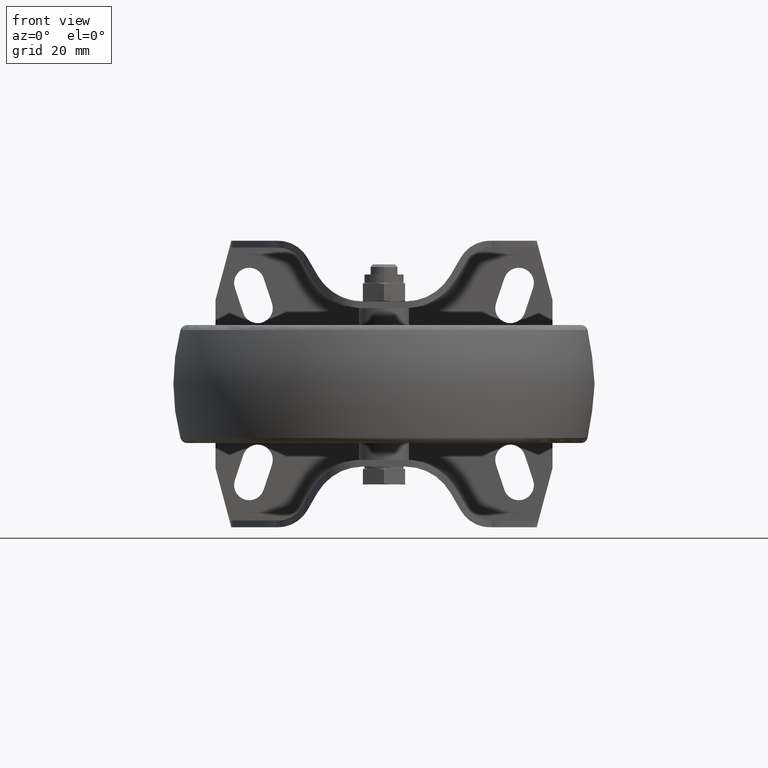
[diagram: clean part render]
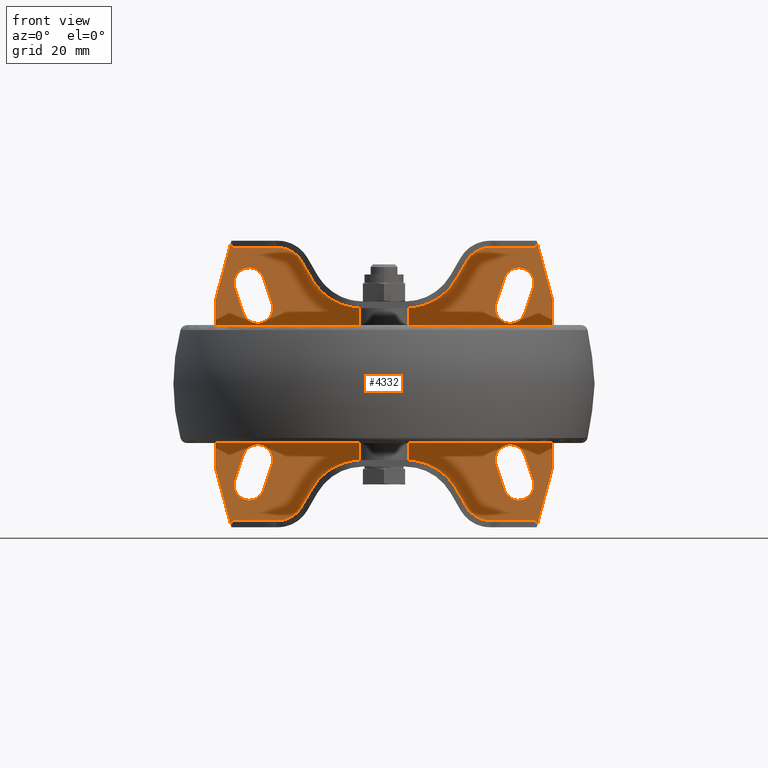
[diagram: same view with one face highlighted and labeled with its STEP entity id]
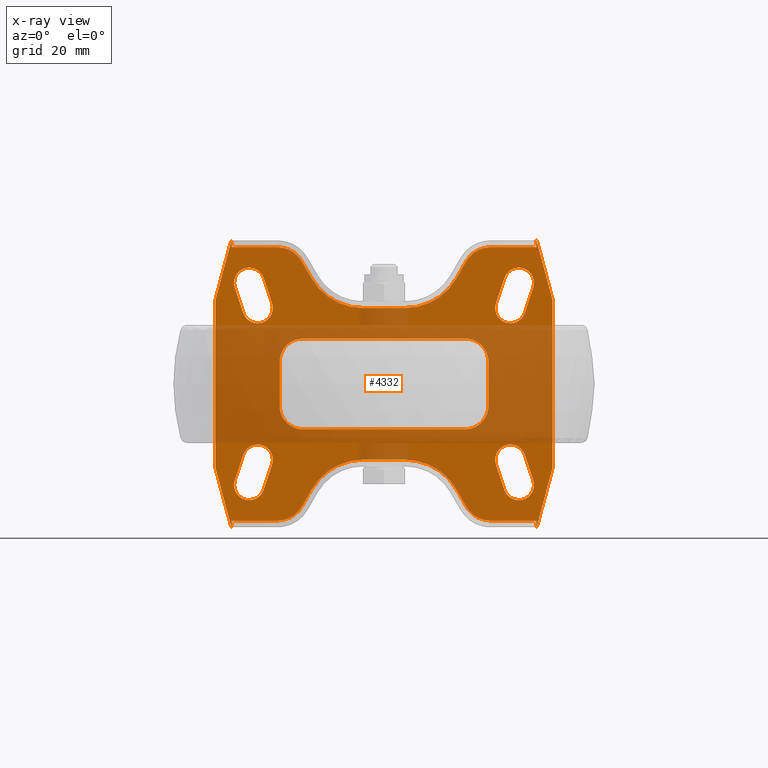
[diagram: x-ray of the same camera — body ghosted, the highlighted face saturated]
A machine part, front view. The second image highlights one B-rep face of the part: STEP entity #4332.
The next image is the same camera in x-ray: the body ghosted, the highlighted face saturated — about 47% of this face is hidden behind the body in this view.
In plain terms, the highlighted planar face has unit normal (0, 1, 0).
Its self-contained STEP definition (entity closure, byte-faithful):
#137=FACE_BOUND('',#681,.T.);
#138=FACE_BOUND('',#682,.T.);
#139=FACE_BOUND('',#683,.T.);
#140=FACE_BOUND('',#684,.T.);
#141=FACE_BOUND('',#685,.T.);
#189=PLANE('',#4717);
#427=FACE_OUTER_BOUND('',#680,.T.);
#680=EDGE_LOOP('',(#3088,#3089,#3090,#3091,#3092,#3093,#3094,#3095,#3096,
#3097,#3098,#3099,#3100,#3101,#3102,#3103,#3104,#3105,#3106,#3107,#3108,
#3109,#3110,#3111,#3112,#3113,#3114,#3115));
#681=EDGE_LOOP('',(#3116,#3117,#3118,#3119));
#682=EDGE_LOOP('',(#3120,#3121,#3122,#3123,#3124,#3125,#3126,#3127));
#683=EDGE_LOOP('',(#3128,#3129,#3130,#3131));
#684=EDGE_LOOP('',(#3132,#3133,#3134,#3135));
#685=EDGE_LOOP('',(#3136,#3137,#3138,#3139));
#860=LINE('',#6736,#1134);
#861=LINE('',#6739,#1135);
#875=LINE('',#6791,#1149);
#876=LINE('',#6794,#1150);
#879=LINE('',#6801,#1153);
#884=LINE('',#6815,#1158);
#887=LINE('',#6825,#1161);
#892=LINE('',#6839,#1166);
#895=LINE('',#6849,#1169);
#900=LINE('',#6863,#1174);
#903=LINE('',#6873,#1177);
#908=LINE('',#6887,#1182);
#912=LINE('',#6898,#1186);
#916=LINE('',#6907,#1190);
#919=LINE('',#6915,#1193);
#922=LINE('',#6924,#1196);
#923=LINE('',#6928,#1197);
#924=LINE('',#6932,#1198);
#925=LINE('',#6936,#1199);
#926=LINE('',#6940,#1200);
#927=LINE('',#6941,#1201);
#928=LINE('',#6943,#1202);
#929=LINE('',#6945,#1203);
#930=LINE('',#6947,#1204);
#931=LINE('',#6951,#1205);
#932=LINE('',#6955,#1206);
#933=LINE('',#6959,#1207);
#934=LINE('',#6962,#1208);
#935=LINE('',#6967,#1209);
#936=LINE('',#6971,#1210);
#937=LINE('',#6975,#1211);
#938=LINE('',#6978,#1212);
#1134=VECTOR('',#5368,18.1173331571764);
#1135=VECTOR('',#5371,50.);
#1149=VECTOR('',#5407,18.1173331571764);
#1150=VECTOR('',#5410,50.);
#1153=VECTOR('',#5415,7.90569415042095);
#1158=VECTOR('',#5428,7.90569415042095);
#1161=VECTOR('',#5439,7.90569415042095);
#1166=VECTOR('',#5452,7.90569415042095);
#1169=VECTOR('',#5463,7.90569415042095);
#1174=VECTOR('',#5476,7.90569415042095);
#1177=VECTOR('',#5487,7.90569415042095);
#1182=VECTOR('',#5500,7.90569415042095);
#1186=VECTOR('',#5512,2.);
#1190=VECTOR('',#5518,2.);
#1193=VECTOR('',#5525,13.8950815951459);
#1196=VECTOR('',#5534,18.1173331571764);
#1197=VECTOR('',#5537,6.06217782649105);
#1198=VECTOR('',#5540,12.6021416551216);
#1199=VECTOR('',#5543,6.06217782649105);
#1200=VECTOR('',#5546,13.8950815951459);
#1201=VECTOR('',#5547,2.);
#1202=VECTOR('',#5548,18.1173331571764);
#1203=VECTOR('',#5549,2.);
#1204=VECTOR('',#5550,13.8950815951459);
#1205=VECTOR('',#5553,6.06217782649105);
#1206=VECTOR('',#5556,12.6021416551216);
#1207=VECTOR('',#5559,6.06217782649105);
#1208=VECTOR('',#5562,13.8950815951459);
#1209=VECTOR('',#5565,14.5742345971973);
#1210=VECTOR('',#5568,49.5742345971972);
#1211=VECTOR('',#5571,14.5742345971972);
#1212=VECTOR('',#5574,49.5742345971972);
#1476=CIRCLE('',#4681,4.5);
#1478=CIRCLE('',#4685,4.5);
#1480=CIRCLE('',#4689,4.5);
#1482=CIRCLE('',#4693,4.49999999999999);
#1484=CIRCLE('',#4697,4.5);
#1486=CIRCLE('',#4701,4.5);
#1488=CIRCLE('',#4705,4.49999999999999);
#1490=CIRCLE('',#4709,4.49999999999999);
#1495=CIRCLE('',#4718,7.99999999999994);
#1496=CIRCLE('',#4719,17.5);
#1497=CIRCLE('',#4720,17.5);
#1498=CIRCLE('',#4721,7.99999999999996);
#1499=CIRCLE('',#4722,8.00000000000002);
#1500=CIRCLE('',#4723,17.5);
#1501=CIRCLE('',#4724,17.5);
#1502=CIRCLE('',#4725,8.00000000000002);
#1503=CIRCLE('',#4726,7.00000000000001);
#1504=CIRCLE('',#4727,7.);
#1505=CIRCLE('',#4728,7.00000000000001);
#1506=CIRCLE('',#4729,7.);
#1712=VERTEX_POINT('',#6730);
#1714=VERTEX_POINT('',#6734);
#1715=VERTEX_POINT('',#6738);
#1726=VERTEX_POINT('',#6771);
#1734=VERTEX_POINT('',#6789);
#1735=VERTEX_POINT('',#6793);
#1737=VERTEX_POINT('',#6799);
#1738=VERTEX_POINT('',#6800);
#1741=VERTEX_POINT('',#6808);
#1743=VERTEX_POINT('',#6814);
#1745=VERTEX_POINT('',#6823);
#1746=VERTEX_POINT('',#6824);
#1749=VERTEX_POINT('',#6832);
#1751=VERTEX_POINT('',#6838);
#1753=VERTEX_POINT('',#6847);
#1754=VERTEX_POINT('',#6848);
#1757=VERTEX_POINT('',#6856);
#1759=VERTEX_POINT('',#6862);
#1761=VERTEX_POINT('',#6871);
#1762=VERTEX_POINT('',#6872);
#1765=VERTEX_POINT('',#6880);
#1767=VERTEX_POINT('',#6886);
#1770=VERTEX_POINT('',#6897);
#1773=VERTEX_POINT('',#6904);
#1774=VERTEX_POINT('',#6906);
#1777=VERTEX_POINT('',#6913);
#1781=VERTEX_POINT('',#6925);
#1782=VERTEX_POINT('',#6927);
#1783=VERTEX_POINT('',#6929);
#1784=VERTEX_POINT('',#6931);
#1785=VERTEX_POINT('',#6933);
#1786=VERTEX_POINT('',#6935);
#1787=VERTEX_POINT('',#6937);
#1788=VERTEX_POINT('',#6939);
#1789=VERTEX_POINT('',#6942);
#1790=VERTEX_POINT('',#6944);
#1791=VERTEX_POINT('',#6946);
#1792=VERTEX_POINT('',#6948);
#1793=VERTEX_POINT('',#6950);
#1794=VERTEX_POINT('',#6952);
#1795=VERTEX_POINT('',#6954);
#1796=VERTEX_POINT('',#6956);
#1797=VERTEX_POINT('',#6958);
#1798=VERTEX_POINT('',#6960);
#1799=VERTEX_POINT('',#6963);
#1800=VERTEX_POINT('',#6964);
#1801=VERTEX_POINT('',#6966);
#1802=VERTEX_POINT('',#6968);
#1803=VERTEX_POINT('',#6970);
#1804=VERTEX_POINT('',#6972);
#1805=VERTEX_POINT('',#6974);
#1806=VERTEX_POINT('',#6976);
#2178=EDGE_CURVE('',#1714,#1712,#860,.T.);
#2179=EDGE_CURVE('',#1715,#1714,#861,.T.);
#2202=EDGE_CURVE('',#1734,#1726,#875,.T.);
#2203=EDGE_CURVE('',#1735,#1734,#876,.T.);
#2206=EDGE_CURVE('',#1737,#1738,#879,.T.);
#2210=EDGE_CURVE('',#1741,#1737,#1476,.T.);
#2213=EDGE_CURVE('',#1743,#1741,#884,.T.);
#2216=EDGE_CURVE('',#1738,#1743,#1478,.T.);
#2218=EDGE_CURVE('',#1745,#1746,#887,.T.);
#2222=EDGE_CURVE('',#1749,#1745,#1480,.T.);
#2225=EDGE_CURVE('',#1751,#1749,#892,.T.);
#2228=EDGE_CURVE('',#1746,#1751,#1482,.T.);
#2230=EDGE_CURVE('',#1753,#1754,#895,.T.);
#2234=EDGE_CURVE('',#1757,#1753,#1484,.T.);
#2237=EDGE_CURVE('',#1759,#1757,#900,.T.);
#2240=EDGE_CURVE('',#1754,#1759,#1486,.T.);
#2242=EDGE_CURVE('',#1761,#1762,#903,.T.);
#2246=EDGE_CURVE('',#1765,#1761,#1488,.T.);
#2249=EDGE_CURVE('',#1767,#1765,#908,.T.);
#2252=EDGE_CURVE('',#1762,#1767,#1490,.T.);
#2255=EDGE_CURVE('',#1770,#1726,#912,.T.);
#2259=EDGE_CURVE('',#1774,#1773,#916,.T.);
#2263=EDGE_CURVE('',#1773,#1777,#919,.T.);
#2268=EDGE_CURVE('',#1774,#1735,#922,.T.);
#2269=EDGE_CURVE('',#1777,#1781,#1495,.T.);
#2270=EDGE_CURVE('',#1781,#1782,#923,.T.);
#2271=EDGE_CURVE('',#1782,#1783,#1496,.T.);
#2272=EDGE_CURVE('',#1783,#1784,#924,.T.);
#2273=EDGE_CURVE('',#1784,#1785,#1497,.T.);
#2274=EDGE_CURVE('',#1785,#1786,#925,.T.);
#2275=EDGE_CURVE('',#1786,#1787,#1498,.T.);
#2276=EDGE_CURVE('',#1787,#1788,#926,.T.);
#2277=EDGE_CURVE('',#1788,#1712,#927,.T.);
#2278=EDGE_CURVE('',#1789,#1715,#928,.T.);
#2279=EDGE_CURVE('',#1789,#1790,#929,.T.);
#2280=EDGE_CURVE('',#1790,#1791,#930,.T.);
#2281=EDGE_CURVE('',#1791,#1792,#1499,.T.);
#2282=EDGE_CURVE('',#1792,#1793,#931,.T.);
#2283=EDGE_CURVE('',#1793,#1794,#1500,.T.);
#2284=EDGE_CURVE('',#1794,#1795,#932,.T.);
#2285=EDGE_CURVE('',#1795,#1796,#1501,.T.);
#2286=EDGE_CURVE('',#1796,#1797,#933,.T.);
#2287=EDGE_CURVE('',#1797,#1798,#1502,.T.);
#2288=EDGE_CURVE('',#1798,#1770,#934,.T.);
#2289=EDGE_CURVE('',#1799,#1800,#1503,.T.);
#2290=EDGE_CURVE('',#1800,#1801,#935,.T.);
#2291=EDGE_CURVE('',#1801,#1802,#1504,.T.);
#2292=EDGE_CURVE('',#1802,#1803,#936,.T.);
#2293=EDGE_CURVE('',#1803,#1804,#1505,.T.);
#2294=EDGE_CURVE('',#1805,#1804,#937,.T.);
#2295=EDGE_CURVE('',#1805,#1806,#1506,.T.);
#2296=EDGE_CURVE('',#1799,#1806,#938,.T.);
#3088=ORIENTED_EDGE('',*,*,#2203,.F.);
#3089=ORIENTED_EDGE('',*,*,#2268,.F.);
#3090=ORIENTED_EDGE('',*,*,#2259,.T.);
#3091=ORIENTED_EDGE('',*,*,#2263,.T.);
#3092=ORIENTED_EDGE('',*,*,#2269,.T.);
#3093=ORIENTED_EDGE('',*,*,#2270,.T.);
#3094=ORIENTED_EDGE('',*,*,#2271,.T.);
#3095=ORIENTED_EDGE('',*,*,#2272,.T.);
#3096=ORIENTED_EDGE('',*,*,#2273,.T.);
#3097=ORIENTED_EDGE('',*,*,#2274,.T.);
#3098=ORIENTED_EDGE('',*,*,#2275,.T.);
#3099=ORIENTED_EDGE('',*,*,#2276,.T.);
#3100=ORIENTED_EDGE('',*,*,#2277,.T.);
#3101=ORIENTED_EDGE('',*,*,#2178,.F.);
#3102=ORIENTED_EDGE('',*,*,#2179,.F.);
#3103=ORIENTED_EDGE('',*,*,#2278,.F.);
#3104=ORIENTED_EDGE('',*,*,#2279,.T.);
#3105=ORIENTED_EDGE('',*,*,#2280,.T.);
#3106=ORIENTED_EDGE('',*,*,#2281,.T.);
#3107=ORIENTED_EDGE('',*,*,#2282,.T.);
#3108=ORIENTED_EDGE('',*,*,#2283,.T.);
#3109=ORIENTED_EDGE('',*,*,#2284,.T.);
#3110=ORIENTED_EDGE('',*,*,#2285,.T.);
#3111=ORIENTED_EDGE('',*,*,#2286,.T.);
#3112=ORIENTED_EDGE('',*,*,#2287,.T.);
#3113=ORIENTED_EDGE('',*,*,#2288,.T.);
#3114=ORIENTED_EDGE('',*,*,#2255,.T.);
#3115=ORIENTED_EDGE('',*,*,#2202,.F.);
#3116=ORIENTED_EDGE('',*,*,#2252,.F.);
#3117=ORIENTED_EDGE('',*,*,#2242,.F.);
#3118=ORIENTED_EDGE('',*,*,#2246,.F.);
#3119=ORIENTED_EDGE('',*,*,#2249,.F.);
#3120=ORIENTED_EDGE('',*,*,#2289,.T.);
#3121=ORIENTED_EDGE('',*,*,#2290,.T.);
#3122=ORIENTED_EDGE('',*,*,#2291,.T.);
#3123=ORIENTED_EDGE('',*,*,#2292,.T.);
#3124=ORIENTED_EDGE('',*,*,#2293,.T.);
#3125=ORIENTED_EDGE('',*,*,#2294,.F.);
#3126=ORIENTED_EDGE('',*,*,#2295,.T.);
#3127=ORIENTED_EDGE('',*,*,#2296,.F.);
#3128=ORIENTED_EDGE('',*,*,#2228,.F.);
#3129=ORIENTED_EDGE('',*,*,#2218,.F.);
#3130=ORIENTED_EDGE('',*,*,#2222,.F.);
#3131=ORIENTED_EDGE('',*,*,#2225,.F.);
#3132=ORIENTED_EDGE('',*,*,#2216,.F.);
#3133=ORIENTED_EDGE('',*,*,#2206,.F.);
#3134=ORIENTED_EDGE('',*,*,#2210,.F.);
#3135=ORIENTED_EDGE('',*,*,#2213,.F.);
#3136=ORIENTED_EDGE('',*,*,#2240,.F.);
#3137=ORIENTED_EDGE('',*,*,#2230,.F.);
#3138=ORIENTED_EDGE('',*,*,#2234,.F.);
#3139=ORIENTED_EDGE('',*,*,#2237,.F.);
#4332=ADVANCED_FACE('',(#427,#137,#138,#139,#140,#141),#189,.F.);
#4681=AXIS2_PLACEMENT_3D('',#6809,#5421,#5422);
#4685=AXIS2_PLACEMENT_3D('',#6820,#5433,#5434);
#4689=AXIS2_PLACEMENT_3D('',#6833,#5445,#5446);
#4693=AXIS2_PLACEMENT_3D('',#6844,#5457,#5458);
#4697=AXIS2_PLACEMENT_3D('',#6857,#5469,#5470);
#4701=AXIS2_PLACEMENT_3D('',#6868,#5481,#5482);
#4705=AXIS2_PLACEMENT_3D('',#6881,#5493,#5494);
#4709=AXIS2_PLACEMENT_3D('',#6892,#5505,#5506);
#4717=AXIS2_PLACEMENT_3D('',#6923,#5532,#5533);
#4718=AXIS2_PLACEMENT_3D('',#6926,#5535,#5536);
#4719=AXIS2_PLACEMENT_3D('',#6930,#5538,#5539);
#4720=AXIS2_PLACEMENT_3D('',#6934,#5541,#5542);
#4721=AXIS2_PLACEMENT_3D('',#6938,#5544,#5545);
#4722=AXIS2_PLACEMENT_3D('',#6949,#5551,#5552);
#4723=AXIS2_PLACEMENT_3D('',#6953,#5554,#5555);
#4724=AXIS2_PLACEMENT_3D('',#6957,#5557,#5558);
#4725=AXIS2_PLACEMENT_3D('',#6961,#5560,#5561);
#4726=AXIS2_PLACEMENT_3D('',#6965,#5563,#5564);
#4727=AXIS2_PLACEMENT_3D('',#6969,#5566,#5567);
#4728=AXIS2_PLACEMENT_3D('',#6973,#5569,#5570);
#4729=AXIS2_PLACEMENT_3D('',#6977,#5572,#5573);
#5368=DIRECTION('',(0.258819045102519,0.,0.965925826289069));
#5371=DIRECTION('',(0.,0.,1.));
#5407=DIRECTION('',(-0.258819045102519,0.,-0.965925826289069));
#5410=DIRECTION('',(0.,0.,-1.));
#5415=DIRECTION('',(0.316227766016837,0.,0.948683298050514));
#5421=DIRECTION('center_axis',(0.,-1.,0.));
#5422=DIRECTION('ref_axis',(0.948683298050514,0.,-0.316227766016838));
#5428=DIRECTION('',(-0.316227766016837,0.,-0.948683298050514));
#5433=DIRECTION('center_axis',(0.,-1.,0.));
#5434=DIRECTION('ref_axis',(-0.948683298050514,0.,0.316227766016838));
#5439=DIRECTION('',(0.316227766016837,0.,-0.948683298050514));
#5445=DIRECTION('center_axis',(0.,-1.,0.));
#5446=DIRECTION('ref_axis',(-0.948683298050514,0.,-0.316227766016838));
#5452=DIRECTION('',(-0.316227766016837,0.,0.948683298050514));
#5457=DIRECTION('center_axis',(0.,-1.,0.));
#5458=DIRECTION('ref_axis',(0.948683298050514,0.,0.316227766016838));
#5463=DIRECTION('',(0.316227766016837,0.,-0.948683298050514));
#5469=DIRECTION('center_axis',(0.,-1.,0.));
#5470=DIRECTION('ref_axis',(-0.948683298050514,0.,-0.316227766016838));
#5476=DIRECTION('',(-0.316227766016837,0.,0.948683298050514));
#5481=DIRECTION('center_axis',(0.,-1.,0.));
#5482=DIRECTION('ref_axis',(0.948683298050514,0.,0.316227766016838));
#5487=DIRECTION('',(0.316227766016837,0.,0.948683298050514));
#5493=DIRECTION('center_axis',(0.,-1.,0.));
#5494=DIRECTION('ref_axis',(0.948683298050514,0.,-0.316227766016837));
#5500=DIRECTION('',(-0.316227766016837,0.,-0.948683298050514));
#5505=DIRECTION('center_axis',(0.,-1.,0.));
#5506=DIRECTION('ref_axis',(-0.948683298050514,0.,0.316227766016838));
#5512=DIRECTION('',(0.,0.,-1.));
#5518=DIRECTION('',(0.,0.,-1.));
#5525=DIRECTION('',(-1.,0.,0.));
#5532=DIRECTION('center_axis',(0.,1.,0.));
#5533=DIRECTION('ref_axis',(0.,0.,1.));
#5534=DIRECTION('',(0.258819045102521,0.,-0.965925826289068));
#5535=DIRECTION('center_axis',(0.,-1.,0.));
#5536=DIRECTION('ref_axis',(0.,0.,1.));
#5537=DIRECTION('',(-0.500000000000005,0.,-0.866025403784436));
#5538=DIRECTION('center_axis',(0.,1.,0.));
#5539=DIRECTION('ref_axis',(0.866025403784439,0.,-0.5));
#5540=DIRECTION('',(-1.,0.,0.));
#5541=DIRECTION('center_axis',(0.,1.,0.));
#5542=DIRECTION('ref_axis',(0.,0.,-1.));
#5543=DIRECTION('',(-0.499999999999999,0.,0.866025403784439));
#5544=DIRECTION('center_axis',(0.,-1.,0.));
#5545=DIRECTION('ref_axis',(0.86602540378444,0.,0.499999999999997));
#5546=DIRECTION('',(-1.,0.,0.));
#5547=DIRECTION('',(0.,0.,1.));
#5548=DIRECTION('',(-0.258819045102521,0.,0.965925826289068));
#5549=DIRECTION('',(0.,0.,1.));
#5550=DIRECTION('',(1.,0.,0.));
#5551=DIRECTION('center_axis',(0.,-1.,0.));
#5552=DIRECTION('ref_axis',(0.,0.,-1.));
#5553=DIRECTION('',(0.499999999999999,0.,0.866025403784439));
#5554=DIRECTION('center_axis',(0.,1.,0.));
#5555=DIRECTION('ref_axis',(-0.866025403784438,0.,0.500000000000001));
#5556=DIRECTION('',(1.,0.,0.));
#5557=DIRECTION('center_axis',(0.,1.,0.));
#5558=DIRECTION('ref_axis',(0.,0.,1.));
#5559=DIRECTION('',(0.5,0.,-0.866025403784439));
#5560=DIRECTION('center_axis',(0.,-1.,0.));
#5561=DIRECTION('ref_axis',(-0.866025403784439,0.,-0.499999999999999));
#5562=DIRECTION('',(1.,0.,0.));
#5563=DIRECTION('center_axis',(0.,1.,0.));
#5564=DIRECTION('ref_axis',(0.,0.,1.));
#5565=DIRECTION('',(0.,0.,-1.));
#5566=DIRECTION('center_axis',(0.,1.,0.));
#5567=DIRECTION('ref_axis',(1.,0.,0.));
#5568=DIRECTION('',(-1.,0.,0.));
#5569=DIRECTION('center_axis',(0.,1.,0.));
#5570=DIRECTION('ref_axis',(0.,0.,-1.));
#5571=DIRECTION('',(0.,0.,-1.));
#5572=DIRECTION('center_axis',(0.,1.,0.));
#5573=DIRECTION('ref_axis',(-1.,0.,0.));
#5574=DIRECTION('',(-1.,0.,0.));
#6730=CARTESIAN_POINT('',(-45.3108891324554,91.5,42.5));
#6734=CARTESIAN_POINT('',(-50.,91.5,25.));
#6736=CARTESIAN_POINT('',(-50.,91.5,25.));
#6738=CARTESIAN_POINT('',(-50.,91.5,-25.));
#6739=CARTESIAN_POINT('',(-50.,91.5,-25.));
#6771=CARTESIAN_POINT('',(45.3108891324554,91.5,-42.5));
#6789=CARTESIAN_POINT('',(50.,91.5,-25.));
#6791=CARTESIAN_POINT('',(50.,91.5,-25.));
#6793=CARTESIAN_POINT('',(50.,91.5,25.));
#6794=CARTESIAN_POINT('',(50.,91.5,25.));
#6799=CARTESIAN_POINT('',(41.7690748412273,91.5,21.0769750529242));
#6800=CARTESIAN_POINT('',(44.2690748412273,91.5,28.5769750529242));
#6801=CARTESIAN_POINT('',(41.7690748412273,91.5,21.0769750529242));
#6808=CARTESIAN_POINT('',(33.2309251587727,91.5,23.9230249470758));
#6809=CARTESIAN_POINT('Origin',(37.5,91.5,22.5));
#6814=CARTESIAN_POINT('',(35.7309251587727,91.5,31.4230249470758));
#6815=CARTESIAN_POINT('',(35.7309251587727,91.5,31.4230249470758));
#6820=CARTESIAN_POINT('Origin',(40.,91.5,30.));
#6823=CARTESIAN_POINT('',(33.2309251587727,91.5,-23.9230249470758));
#6824=CARTESIAN_POINT('',(35.7309251587727,91.5,-31.4230249470758));
#6825=CARTESIAN_POINT('',(33.2309251587727,91.5,-23.9230249470758));
#6832=CARTESIAN_POINT('',(41.7690748412273,91.5,-21.0769750529242));
#6833=CARTESIAN_POINT('Origin',(37.5,91.5,-22.5));
#6838=CARTESIAN_POINT('',(44.2690748412273,91.5,-28.5769750529242));
#6839=CARTESIAN_POINT('',(44.2690748412273,91.5,-28.5769750529242));
#6844=CARTESIAN_POINT('Origin',(40.,91.5,-30.));
#6847=CARTESIAN_POINT('',(-44.2690748412273,91.5,28.5769750529242));
#6848=CARTESIAN_POINT('',(-41.7690748412273,91.5,21.0769750529242));
#6849=CARTESIAN_POINT('',(-44.2690748412273,91.5,28.5769750529242));
#6856=CARTESIAN_POINT('',(-35.7309251587727,91.5,31.4230249470758));
#6857=CARTESIAN_POINT('Origin',(-40.,91.5,30.));
#6862=CARTESIAN_POINT('',(-33.2309251587727,91.5,23.9230249470758));
#6863=CARTESIAN_POINT('',(-33.2309251587727,91.5,23.9230249470758));
#6868=CARTESIAN_POINT('Origin',(-37.5,91.5,22.5));
#6871=CARTESIAN_POINT('',(-35.7309251587727,91.5,-31.4230249470758));
#6872=CARTESIAN_POINT('',(-33.2309251587727,91.5,-23.9230249470758));
#6873=CARTESIAN_POINT('',(-35.7309251587727,91.5,-31.4230249470758));
#6880=CARTESIAN_POINT('',(-44.2690748412273,91.5,-28.5769750529242));
#6881=CARTESIAN_POINT('Origin',(-40.,91.5,-30.));
#6886=CARTESIAN_POINT('',(-41.7690748412273,91.5,-21.0769750529242));
#6887=CARTESIAN_POINT('',(-41.7690748412273,91.5,-21.0769750529242));
#6892=CARTESIAN_POINT('Origin',(-37.5,91.5,-22.5));
#6897=CARTESIAN_POINT('',(45.3108891324554,91.5,-40.5));
#6898=CARTESIAN_POINT('',(45.3108891324554,91.5,-40.5));
#6904=CARTESIAN_POINT('',(45.3108891324554,91.5,40.5));
#6906=CARTESIAN_POINT('',(45.3108891324554,91.5,42.5));
#6907=CARTESIAN_POINT('',(45.3108891324554,91.5,42.5));
#6913=CARTESIAN_POINT('',(31.4158075373095,91.5,40.5));
#6915=CARTESIAN_POINT('',(45.3108891324554,91.5,40.5));
#6923=CARTESIAN_POINT('Origin',(0.,91.5,0.));
#6924=CARTESIAN_POINT('',(45.3108891324554,91.5,42.5));
#6925=CARTESIAN_POINT('',(24.487604307034,91.5,36.5));
#6926=CARTESIAN_POINT('Origin',(31.4158075373095,91.5,32.5000000000001));
#6927=CARTESIAN_POINT('',(21.4565153937885,91.5,31.25));
#6928=CARTESIAN_POINT('',(24.487604307034,91.5,36.5));
#6929=CARTESIAN_POINT('',(6.3010708275608,91.5,22.5));
#6930=CARTESIAN_POINT('Origin',(6.30107082756078,91.5,40.));
#6931=CARTESIAN_POINT('',(-6.3010708275608,91.5,22.5));
#6932=CARTESIAN_POINT('',(6.3010708275608,91.5,22.5));
#6933=CARTESIAN_POINT('',(-21.4565153937885,91.5,31.25));
#6934=CARTESIAN_POINT('Origin',(-6.3010708275608,91.5,40.));
#6935=CARTESIAN_POINT('',(-24.487604307034,91.5,36.5));
#6936=CARTESIAN_POINT('',(-21.4565153937885,91.5,31.25));
#6937=CARTESIAN_POINT('',(-31.4158075373095,91.5,40.5));
#6938=CARTESIAN_POINT('Origin',(-31.4158075373095,91.5,32.5));
#6939=CARTESIAN_POINT('',(-45.3108891324554,91.5,40.5));
#6940=CARTESIAN_POINT('',(-31.4158075373095,91.5,40.5));
#6941=CARTESIAN_POINT('',(-45.3108891324554,91.5,40.5));
#6942=CARTESIAN_POINT('',(-45.3108891324554,91.5,-42.5));
#6943=CARTESIAN_POINT('',(-45.3108891324554,91.5,-42.5));
#6944=CARTESIAN_POINT('',(-45.3108891324554,91.5,-40.5));
#6945=CARTESIAN_POINT('',(-45.3108891324554,91.5,-42.5));
#6946=CARTESIAN_POINT('',(-31.4158075373095,91.5,-40.5));
#6947=CARTESIAN_POINT('',(-45.3108891324554,91.5,-40.5));
#6948=CARTESIAN_POINT('',(-24.487604307034,91.5,-36.5));
#6949=CARTESIAN_POINT('Origin',(-31.4158075373095,91.5,-32.5));
#6950=CARTESIAN_POINT('',(-21.4565153937885,91.5,-31.25));
#6951=CARTESIAN_POINT('',(-24.4876043070341,91.5,-36.5));
#6952=CARTESIAN_POINT('',(-6.3010708275608,91.5,-22.5));
#6953=CARTESIAN_POINT('Origin',(-6.30107082756081,91.5,-40.));
#6954=CARTESIAN_POINT('',(6.3010708275608,91.5,-22.5));
#6955=CARTESIAN_POINT('',(-6.3010708275608,91.5,-22.5));
#6956=CARTESIAN_POINT('',(21.4565153937885,91.5,-31.25));
#6957=CARTESIAN_POINT('Origin',(6.30107082756078,91.5,-40.));
#6958=CARTESIAN_POINT('',(24.487604307034,91.5,-36.5));
#6959=CARTESIAN_POINT('',(21.4565153937885,91.5,-31.25));
#6960=CARTESIAN_POINT('',(31.4158075373095,91.5,-40.5));
#6961=CARTESIAN_POINT('Origin',(31.4158075373095,91.5,-32.5));
#6962=CARTESIAN_POINT('',(31.4158075373095,91.5,-40.5));
#6963=CARTESIAN_POINT('',(24.7871172985986,91.5,13.4556053912112));
#6964=CARTESIAN_POINT('',(30.9556053912112,91.5,7.2871172985987));
#6965=CARTESIAN_POINT('Origin',(24.,91.5,6.49999999999999));
#6966=CARTESIAN_POINT('',(30.9556053912112,91.5,-7.28711729859862));
#6967=CARTESIAN_POINT('',(30.9556053912112,91.5,7.2871172985987));
#6968=CARTESIAN_POINT('',(24.7871172985986,91.5,-13.4556053912112));
#6969=CARTESIAN_POINT('Origin',(24.,91.5,-6.5));
#6970=CARTESIAN_POINT('',(-24.7871172985986,91.5,-13.4556053912112));
#6971=CARTESIAN_POINT('',(24.7871172985986,91.5,-13.4556053912112));
#6972=CARTESIAN_POINT('',(-30.9556053912112,91.5,-7.28711729859863));
#6973=CARTESIAN_POINT('Origin',(-24.,91.5,-6.49999999999999));
#6974=CARTESIAN_POINT('',(-30.9556053912112,91.5,7.28711729859856));
#6975=CARTESIAN_POINT('',(-30.9556053912112,91.5,7.28711729859856));
#6976=CARTESIAN_POINT('',(-24.7871172985986,91.5,13.4556053912112));
#6977=CARTESIAN_POINT('Origin',(-24.,91.5,6.5));
#6978=CARTESIAN_POINT('',(24.7871172985986,91.5,13.4556053912112));